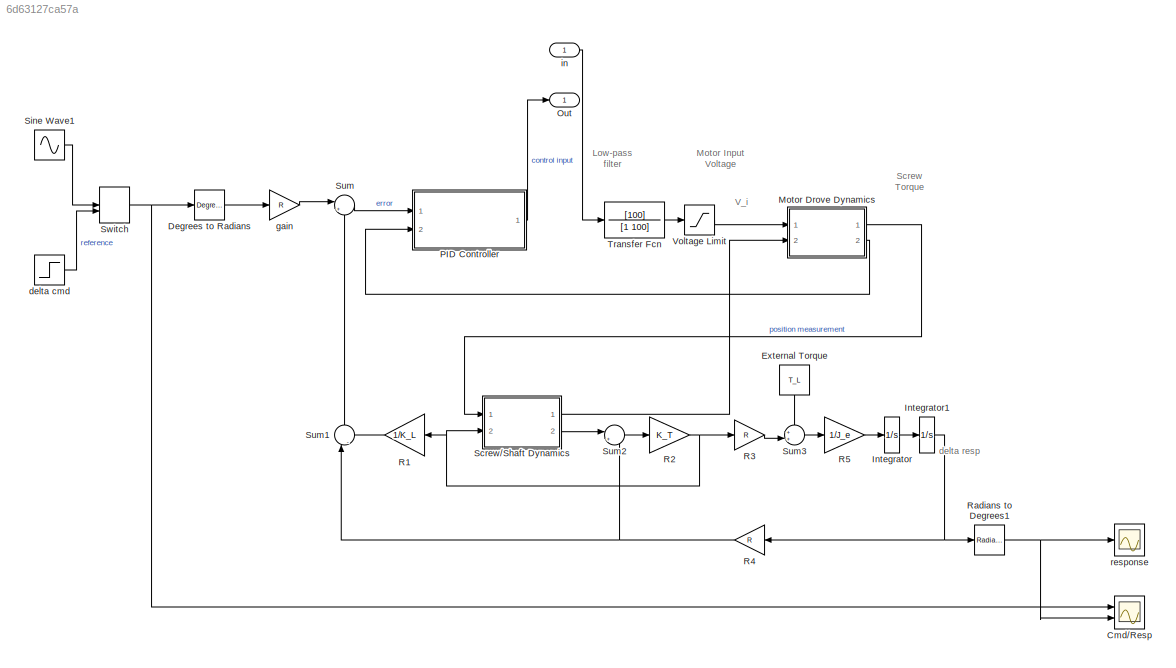
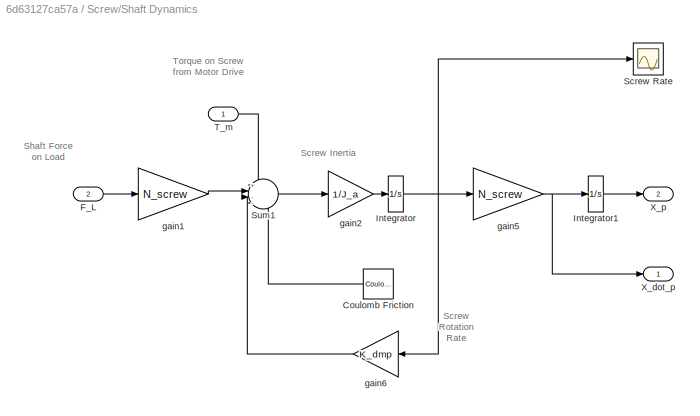
MODEL slx_6d63127ca57a
KIND model
CONFIG AbsTol = auto
CONFIG FixedStep = auto
CONFIG MaxStep = 0.01
CONFIG MinStep = auto
CONFIG RelTol = 1e-6
CONFIG SampleTimeConstraint = Unconstrained
CONFIG Solver = VariableStepAuto
CONFIG SolverMode = Auto
CONFIG SolverName = VariableStepAuto
CONFIG StartTime = 0.0
CONFIG StopTime = 4
BLOCK [ManualSwitch]  Switch
  CurrentSetting = 0
BLOCK [Scope] Cmd//Resp
  NumInputPorts = 2
  Ports = [2]
  ScopeSpecificationString = Simulink.scopes.TimeScopeBlockCfg('CurrentConfiguration', extmgr.ConfigurationSet(extmgr.Configuration('Core','General UI',true),extmgr.Configuration('Core','Source UI',true),extmgr.Configuration('Sources','WiredSimulink',true),extmgr.Configuration('Visuals','Time Domain',true,'SerializedDisplays',{struct('MinYLimReal','-1.25015','MaxYLimReal','11.25136','YLabelReal','','MinYLimMag','0.00000','Max...<+1425ch>
BLOCK [Reference] Degrees to Radians  REF=simulink_extras/Transformations/Degrees to
Radians
  Ports = [1, 1]
  SourceBlock = simulink_extras/Transformations/Degrees to\nRadians
  SourceType = DegreesToRadians
BLOCK [Constant] External Torque
  Value = T_L
BLOCK [Integrator] Integrator
  Ports = [1, 1]
BLOCK [Integrator] Integrator1
  Ports = [1, 1]
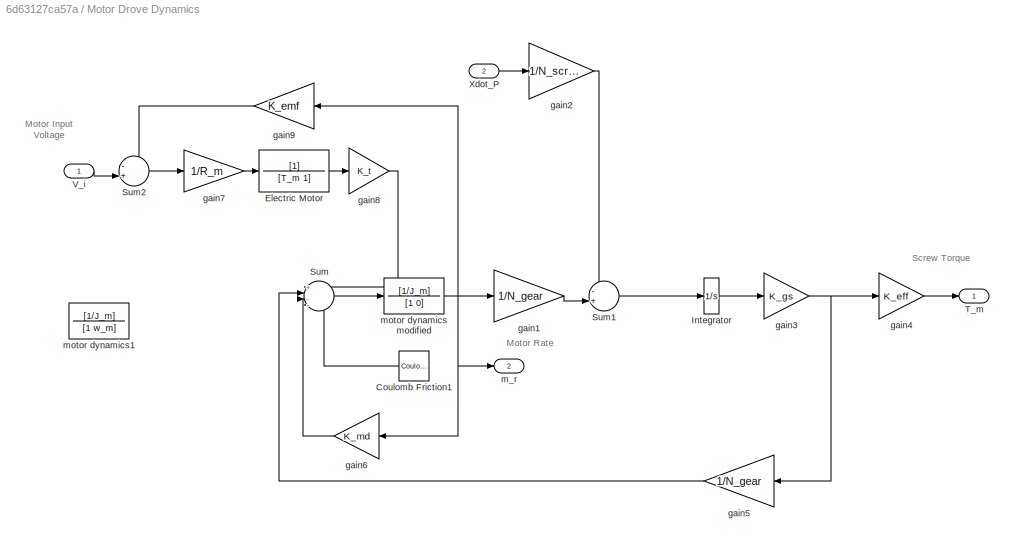
BLOCK [SubSystem] Motor Drove Dynamics
  Ports = [2, 2]
  RequestExecContextInheritance = off
  Variant = off
BLOCK [Reference] Motor Drove Dynamics/Coulomb Friction1  REF=simulink/Discontinuities/Coulomb &
Viscous Friction
  Ports = [1, 1]
  SourceBlock = simulink/Discontinuities/Coulomb &\nViscous Friction
  SourceType = Coulombic and Viscous Friction
BLOCK [TransferFcn] Motor Drove Dynamics/Electric Motor
  Denominator = [T_m 1]
BLOCK [Integrator] Motor Drove Dynamics/Integrator
  Ports = [1, 1]
BLOCK [Sum] Motor Drove Dynamics/Sum
  IconShape = round
  InputSameDT = off
  Inputs = +|---
  OutDataTypeStr = Inherit: Inherit via internal rule
  Ports = [4, 1]
  SaturateOnIntegerOverflow = off
BLOCK [Sum] Motor Drove Dynamics/Sum1
  IconShape = round
  InputSameDT = off
  Inputs = -+|
  OutDataTypeStr = Inherit: Inherit via internal rule
  Ports = [2, 1]
  SaturateOnIntegerOverflow = off
BLOCK [Sum] Motor Drove Dynamics/Sum2
  IconShape = round
  InputSameDT = off
  Inputs = -+|
  OutDataTypeStr = Inherit: Inherit via internal rule
  Ports = [2, 1]
  SaturateOnIntegerOverflow = off
BLOCK [Outport] Motor Drove Dynamics/T_m
  IconDisplay = Port number
BLOCK [Inport] Motor Drove Dynamics/V_i
  IconDisplay = Port number
BLOCK [Inport] Motor Drove Dynamics/Xdot_P
  IconDisplay = Port number
  Port = 2
BLOCK [Gain] Motor Drove Dynamics/gain1
  Gain = 1/N_gear
  OutDataTypeStr = Inherit: Inherit via internal rule
  ParamDataTypeStr = Inherit: Inherit via internal rule
  SaturateOnIntegerOverflow = off
BLOCK [Gain] Motor Drove Dynamics/gain2
  Gain = 1/N_screw
  OutDataTypeStr = Inherit: Inherit via internal rule
  ParamDataTypeStr = Inherit: Inherit via internal rule
  SaturateOnIntegerOverflow = off
BLOCK [Gain] Motor Drove Dynamics/gain3
  Gain = K_gs
  OutDataTypeStr = Inherit: Inherit via internal rule
  ParamDataTypeStr = Inherit: Inherit via internal rule
  SaturateOnIntegerOverflow = off
BLOCK [Gain] Motor Drove Dynamics/gain4
  Gain = K_eff
  OutDataTypeStr = Inherit: Inherit via internal rule
  ParamDataTypeStr = Inherit: Inherit via internal rule
  SaturateOnIntegerOverflow = off
BLOCK [Gain] Motor Drove Dynamics/gain5
  Gain = 1/N_gear
  OutDataTypeStr = Inherit: Inherit via internal rule
  ParamDataTypeStr = Inherit: Inherit via internal rule
  SaturateOnIntegerOverflow = off
BLOCK [Gain] Motor Drove Dynamics/gain6
  Gain = K_md
  OutDataTypeStr = Inherit: Inherit via internal rule
  ParamDataTypeStr = Inherit: Inherit via internal rule
  SaturateOnIntegerOverflow = off
BLOCK [Gain] Motor Drove Dynamics/gain7
  Gain = 1/R_m
  OutDataTypeStr = Inherit: Inherit via internal rule
  ParamDataTypeStr = Inherit: Inherit via internal rule
  SaturateOnIntegerOverflow = off
BLOCK [Gain] Motor Drove Dynamics/gain8
  Gain = K_t
  OutDataTypeStr = Inherit: Inherit via internal rule
  ParamDataTypeStr = Inherit: Inherit via internal rule
  SaturateOnIntegerOverflow = off
BLOCK [Gain] Motor Drove Dynamics/gain9
  Gain = K_emf
  OutDataTypeStr = Inherit: Inherit via internal rule
  ParamDataTypeStr = Inherit: Inherit via internal rule
  SaturateOnIntegerOverflow = off
BLOCK [Outport] Motor Drove Dynamics/m_r
  IconDisplay = Port number
  Port = 2
BLOCK [TransferFcn] Motor Drove Dynamics/motor dynamics modified
  Denominator = [1 0]
  Numerator = [1/J_m]
BLOCK [TransferFcn] Motor Drove Dynamics/motor dynamics1
  Denominator = [1 w_m]
  Numerator = [1/J_m]
BLOCK [Outport] Out
  IconDisplay = Port number
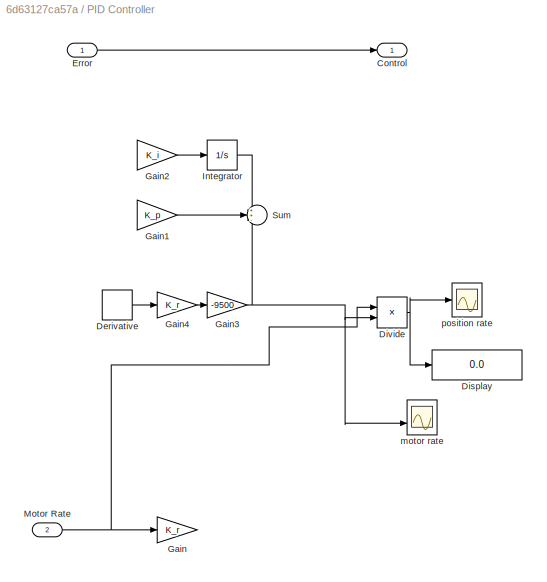
BLOCK [SubSystem] PID Controller
  Ports = [2, 1]
  RequestExecContextInheritance = off
  Variant = off
BLOCK [Outport] PID Controller/Control
  IconDisplay = Port number
BLOCK [Derivative] PID Controller/Derivative
BLOCK [Display] PID Controller/Display
  Decimation = 1
  Ports = [1]
BLOCK [Product] PID Controller/Divide
  InputSameDT = off
  Inputs = */
  OutDataTypeStr = Inherit: Inherit via internal rule
  Ports = [2, 1]
  RndMeth = Floor
  SaturateOnIntegerOverflow = off
BLOCK [Inport] PID Controller/Error
  IconDisplay = Port number
BLOCK [Gain] PID Controller/Gain
  Gain = K_r
  OutDataTypeStr = Inherit: Inherit via internal rule
  ParamDataTypeStr = Inherit: Inherit via internal rule
  SaturateOnIntegerOverflow = off
BLOCK [Gain] PID Controller/Gain1
  Gain = K_p
  OutDataTypeStr = Inherit: Inherit via internal rule
  ParamDataTypeStr = Inherit: Inherit via internal rule
  SaturateOnIntegerOverflow = off
BLOCK [Gain] PID Controller/Gain2
  Gain = K_i
  OutDataTypeStr = Inherit: Inherit via internal rule
  ParamDataTypeStr = Inherit: Inherit via internal rule
  SaturateOnIntegerOverflow = off
BLOCK [Gain] PID Controller/Gain3
  Gain = -9500
  OutDataTypeStr = Inherit: Inherit via internal rule
  ParamDataTypeStr = Inherit: Inherit via internal rule
  SaturateOnIntegerOverflow = off
BLOCK [Gain] PID Controller/Gain4
  Gain = K_r
  OutDataTypeStr = Inherit: Inherit via internal rule
  ParamDataTypeStr = Inherit: Inherit via internal rule
  SaturateOnIntegerOverflow = off
BLOCK [Integrator] PID Controller/Integrator
  Ports = [1, 1]
BLOCK [Inport] PID Controller/Motor Rate
  IconDisplay = Port number
  Port = 2
BLOCK [Sum] PID Controller/Sum
  IconShape = round
  InputSameDT = off
  Inputs = ++-
  OutDataTypeStr = Inherit: Inherit via internal rule
  Ports = [3, 1]
  SaturateOnIntegerOverflow = off
BLOCK [Scope] PID Controller/motor rate
  NumInputPorts = 2
  Ports = [2]
  ScopeSpecificationString = Simulink.scopes.TimeScopeBlockCfg('CurrentConfiguration', extmgr.ConfigurationSet(extmgr.Configuration('Core','General UI',true),extmgr.Configuration('Core','Source UI',true),extmgr.Configuration('Sources','WiredSimulink',true,'DataLoggingVariableName','ScopeData4'),extmgr.Configuration('Visuals','Time Domain',true,'SerializedDisplays',{struct('MinYLimReal','-243.4037','MaxYLimReal','904.28967','Y...<+1437ch>
BLOCK [Scope] PID Controller/position rate
  Ports = [1]
  ScopeSpecificationString = Simulink.scopes.TimeScopeBlockCfg('CurrentConfiguration', extmgr.ConfigurationSet(extmgr.Configuration('Core','General UI',true),extmgr.Configuration('Core','Source UI',true),extmgr.Configuration('Sources','WiredSimulink',true,'DataLoggingVariableName','ScopeData3'),extmgr.Configuration('Visuals','Time Domain',true,'SerializedDisplays',{struct('MinYLimReal','-9679.94478','MaxYLimReal','-9321.5594'...<+1436ch>
BLOCK [Gain] R1
  Gain = 1/K_L
  OutDataTypeStr = Inherit: Inherit via internal rule
  ParamDataTypeStr = Inherit: Inherit via internal rule
  SaturateOnIntegerOverflow = off
BLOCK [Gain] R2
  Gain = K_T
  OutDataTypeStr = Inherit: Inherit via internal rule
  ParamDataTypeStr = Inherit: Inherit via internal rule
  SaturateOnIntegerOverflow = off
BLOCK [Gain] R3
  Gain = R
  OutDataTypeStr = Inherit: Inherit via internal rule
  ParamDataTypeStr = Inherit: Inherit via internal rule
  SaturateOnIntegerOverflow = off
BLOCK [Gain] R4
  Gain = R
  OutDataTypeStr = Inherit: Inherit via internal rule
  ParamDataTypeStr = Inherit: Inherit via internal rule
  SaturateOnIntegerOverflow = off
BLOCK [Gain] R5
  Gain = 1/J_e
  OutDataTypeStr = Inherit: Inherit via internal rule
  ParamDataTypeStr = Inherit: Inherit via internal rule
  SaturateOnIntegerOverflow = off
BLOCK [Reference] Radians to Degrees1  REF=simulink_extras/Transformations/Radians
to Degrees
  Ports = [1, 1]
  SourceBlock = simulink_extras/Transformations/Radians\nto Degrees
  SourceType = RadiansToDegrees
BLOCK [SubSystem] Screw//Shaft Dynamics
  Ports = [2, 2]
  RequestExecContextInheritance = off
  Variant = off
BLOCK [Reference] Screw//Shaft Dynamics/Coulomb Friction  REF=simulink/Discontinuities/Coulomb &
Viscous Friction
  Ports = [1, 1]
  SourceBlock = simulink/Discontinuities/Coulomb &\nViscous Friction
  SourceType = Coulombic and Viscous Friction
BLOCK [Inport] Screw//Shaft Dynamics/F_L
  IconDisplay = Port number
  Port = 2
BLOCK [Integrator] Screw//Shaft Dynamics/Integrator
  Ports = [1, 1]
  ZeroCross = off
BLOCK [Integrator] Screw//Shaft Dynamics/Integrator1
  Ports = [1, 1]
BLOCK [Scope] Screw//Shaft Dynamics/Screw Rate
  Ports = [1]
  ScopeSpecificationString = Simulink.scopes.TimeScopeBlockCfg('CurrentConfiguration', extmgr.ConfigurationSet(extmgr.Configuration('Core','General UI',true),extmgr.Configuration('Core','Source UI',true),extmgr.Configuration('Sources','WiredSimulink',true,'DataLoggingVariableName','ScopeData2'),extmgr.Configuration('Visuals','Time Domain',true,'SerializedDisplays',{struct('MinYLimReal','-28.41978','MaxYLimReal','232.61739','Y...<+1409ch>
BLOCK [Sum] Screw//Shaft Dynamics/Sum1
  IconShape = round
  InputSameDT = off
  Inputs = +|---
  OutDataTypeStr = Inherit: Inherit via internal rule
  Ports = [4, 1]
  SaturateOnIntegerOverflow = off
BLOCK [Inport] Screw//Shaft Dynamics/T_m
  IconDisplay = Port number
BLOCK [Outport] Screw//Shaft Dynamics/X_dot_p
  IconDisplay = Port number
BLOCK [Outport] Screw//Shaft Dynamics/X_p
  IconDisplay = Port number
  Port = 2
BLOCK [Gain] Screw//Shaft Dynamics/gain1
  Gain = N_screw
  OutDataTypeStr = Inherit: Inherit via internal rule
  ParamDataTypeStr = Inherit: Inherit via internal rule
  SaturateOnIntegerOverflow = off
BLOCK [Gain] Screw//Shaft Dynamics/gain2
  Gain = 1/J_a
  OutDataTypeStr = Inherit: Inherit via internal rule
  ParamDataTypeStr = Inherit: Inherit via internal rule
  SaturateOnIntegerOverflow = off
BLOCK [Gain] Screw//Shaft Dynamics/gain5
  Gain = N_screw
  OutDataTypeStr = Inherit: Inherit via internal rule
  ParamDataTypeStr = Inherit: Inherit via internal rule
  SaturateOnIntegerOverflow = off
BLOCK [Gain] Screw//Shaft Dynamics/gain6
  Gain = K_dmp
  OutDataTypeStr = Inherit: Inherit via internal rule
  ParamDataTypeStr = Inherit: Inherit via internal rule
  SaturateOnIntegerOverflow = off
BLOCK [Sin] Sine Wave1
  Amplitude = 0.5
  Frequency = 8*2*pi
  Ports = [0, 1]
  SampleTime = 0
BLOCK [Sum] Sum
  IconShape = round
  InputSameDT = off
  Inputs = |++
  OutDataTypeStr = Inherit: Inherit via internal rule
  Ports = [2, 1]
  SaturateOnIntegerOverflow = off
BLOCK [Sum] Sum1
  IconShape = round
  InputSameDT = off
  Inputs = |--
  OutDataTypeStr = Inherit: Inherit via internal rule
  Ports = [2, 1]
  SaturateOnIntegerOverflow = off
BLOCK [Sum] Sum2
  IconShape = round
  InputSameDT = off
  Inputs = |+-
  OutDataTypeStr = Inherit: Inherit via internal rule
  Ports = [2, 1]
  SaturateOnIntegerOverflow = off
BLOCK [Sum] Sum3
  IconShape = round
  InputSameDT = off
  Inputs = ++|
  OutDataTypeStr = Inherit: Inherit via internal rule
  Ports = [2, 1]
  SaturateOnIntegerOverflow = off
BLOCK [TransferFcn] Transfer Fcn
  Denominator = [1 100]
  Numerator = [100]
BLOCK [Saturate] Voltage Limit
  InputPortMap = u0
  LowerLimit = -V_lim
  Ports = [1, 1]
  UpperLimit = V_lim
  ZeroCross = off
BLOCK [Step] delta cmd
  After = 10
  SampleTime = 0
  Time = 0
  ZeroCross = off
BLOCK [Gain] gain
  Gain = R
  OutDataTypeStr = Inherit: Inherit via internal rule
  ParamDataTypeStr = Inherit: Inherit via internal rule
  SaturateOnIntegerOverflow = off
BLOCK [Inport] in
  IconDisplay = Port number
BLOCK [Scope] response
  Ports = [1]
  ScopeSpecificationString = Simulink.scopes.TimeScopeBlockCfg('CurrentConfiguration', extmgr.ConfigurationSet(extmgr.Configuration('Core','General UI',true),extmgr.Configuration('Core','Source UI',true),extmgr.Configuration('Sources','WiredSimulink',true,'DataLoggingVariableName','ScopeData1'),extmgr.Configuration('Visuals','Time Domain',true,'SerializedDisplays',{struct('MinYLimReal','-1.26724','MaxYLimReal','11.40518','YLa...<+1438ch>
ANNOTATION (root): Low-pass filter
ANNOTATION (root): Motor Input Voltage
ANNOTATION (root): Screw Torque
ANNOTATION (root): V_i
ANNOTATION (root): delta resp
ANNOTATION Motor Drove Dynamics: Motor Input Voltage
ANNOTATION Motor Drove Dynamics: Motor Rate
ANNOTATION Motor Drove Dynamics: Screw Torque
ANNOTATION Screw//Shaft Dynamics: Screw Rotation Rate
ANNOTATION Screw//Shaft Dynamics: Screw Inertia
ANNOTATION Screw//Shaft Dynamics: Shaft Force on Load
ANNOTATION Screw//Shaft Dynamics: Torque on Screw from Motor Drive
NET  Switch:1 -> Cmd//Resp:1, Degrees to Radians:1
LINE Degrees to Radians:1 -> gain:1
LINE External Torque:1 -> Sum3:1
NET Integrator1:1 -> R4:1, Radians to Degrees1:1
LINE Integrator:1 -> Integrator1:1
LINE Motor Drove Dynamics/Coulomb Friction1:1 -> Motor Drove Dynamics/Sum:4
LINE Motor Drove Dynamics/Electric Motor:1 -> Motor Drove Dynamics/gain8:1
LINE Motor Drove Dynamics/Integrator:1 -> Motor Drove Dynamics/gain3:1
LINE Motor Drove Dynamics/Sum1:1 -> Motor Drove Dynamics/Integrator:1
LINE Motor Drove Dynamics/Sum2:1 -> Motor Drove Dynamics/gain7:1
LINE Motor Drove Dynamics/Sum:1 -> Motor Drove Dynamics/motor dynamics modified:1
LINE Motor Drove Dynamics/V_i:1 -> Motor Drove Dynamics/Sum2:2
LINE Motor Drove Dynamics/Xdot_P:1 -> Motor Drove Dynamics/gain2:1
LINE Motor Drove Dynamics/gain1:1 -> Motor Drove Dynamics/Sum1:2
LINE Motor Drove Dynamics/gain2:1 -> Motor Drove Dynamics/Sum1:1
NET Motor Drove Dynamics/gain3:1 -> Motor Drove Dynamics/gain4:1, Motor Drove Dynamics/gain5:1
LINE Motor Drove Dynamics/gain4:1 -> Motor Drove Dynamics/T_m:1
LINE Motor Drove Dynamics/gain5:1 -> Motor Drove Dynamics/Sum:2
LINE Motor Drove Dynamics/gain6:1 -> Motor Drove Dynamics/Sum:3
LINE Motor Drove Dynamics/gain7:1 -> Motor Drove Dynamics/Electric Motor:1
LINE Motor Drove Dynamics/gain8:1 -> Motor Drove Dynamics/Sum:1
LINE Motor Drove Dynamics/gain9:1 -> Motor Drove Dynamics/Sum2:1
NET Motor Drove Dynamics/motor dynamics modified:1 -> Motor Drove Dynamics/gain1:1, Motor Drove Dynamics/gain6:1, Motor Drove Dynamics/gain9:1, Motor Drove Dynamics/m_r:1
LINE Motor Drove Dynamics:1 -> Screw//Shaft Dynamics:1
LINE Motor Drove Dynamics:2 -> PID Controller:2
LINE PID Controller/Derivative:1 -> PID Controller/Gain4:1
NET PID Controller/Divide:1 -> PID Controller/Display:1, PID Controller/position rate:1
LINE PID Controller/Error:1 -> PID Controller/Control:1
LINE PID Controller/Gain1:1 -> PID Controller/Sum:2
LINE PID Controller/Gain2:1 -> PID Controller/Integrator:1
NET PID Controller/Gain3:1 -> PID Controller/Divide:2, PID Controller/Sum:3, PID Controller/motor rate:2
LINE PID Controller/Gain4:1 -> PID Controller/Gain3:1
LINE PID Controller/Integrator:1 -> PID Controller/Sum:1
NET PID Controller/Motor Rate:1 -> PID Controller/Divide:1, PID Controller/Gain:1
LINE PID Controller:1 -> Out:1
LINE R1:1 -> Sum1:2
NET R2:1 -> R1:1, R3:1, Screw//Shaft Dynamics:2
LINE R3:1 -> Sum3:2
NET R4:1 -> Sum1:1, Sum2:2
LINE R5:1 -> Integrator:1
NET Radians to Degrees1:1 -> Cmd//Resp:2, response:1
LINE Screw//Shaft Dynamics/Coulomb Friction:1 -> Screw//Shaft Dynamics/Sum1:4
LINE Screw//Shaft Dynamics/F_L:1 -> Screw//Shaft Dynamics/gain1:1
LINE Screw//Shaft Dynamics/Integrator1:1 -> Screw//Shaft Dynamics/X_p:1
NET Screw//Shaft Dynamics/Integrator:1 -> Screw//Shaft Dynamics/Screw Rate:1, Screw//Shaft Dynamics/gain5:1, Screw//Shaft Dynamics/gain6:1
LINE Screw//Shaft Dynamics/Sum1:1 -> Screw//Shaft Dynamics/gain2:1
LINE Screw//Shaft Dynamics/T_m:1 -> Screw//Shaft Dynamics/Sum1:1
LINE Screw//Shaft Dynamics/gain1:1 -> Screw//Shaft Dynamics/Sum1:2
LINE Screw//Shaft Dynamics/gain2:1 -> Screw//Shaft Dynamics/Integrator:1
NET Screw//Shaft Dynamics/gain5:1 -> Screw//Shaft Dynamics/Integrator1:1, Screw//Shaft Dynamics/X_dot_p:1
LINE Screw//Shaft Dynamics/gain6:1 -> Screw//Shaft Dynamics/Sum1:3
LINE Screw//Shaft Dynamics:1 -> Motor Drove Dynamics:2
LINE Screw//Shaft Dynamics:2 -> Sum2:1
LINE Sine Wave1:1 ->  Switch:1
LINE Sum1:1 -> Sum:2
LINE Sum2:1 -> R2:1
LINE Sum3:1 -> R5:1
LINE Sum:1 -> PID Controller:1
LINE Transfer Fcn:1 -> Voltage Limit:1
LINE Voltage Limit:1 -> Motor Drove Dynamics:1
LINE delta cmd:1 ->  Switch:2
LINE gain:1 -> Sum:1
LINE in:1 -> Transfer Fcn:1
note: NET lines group one-source signal fan-out (src -> all destinations, sorted); 1:1 wires keep LINE
